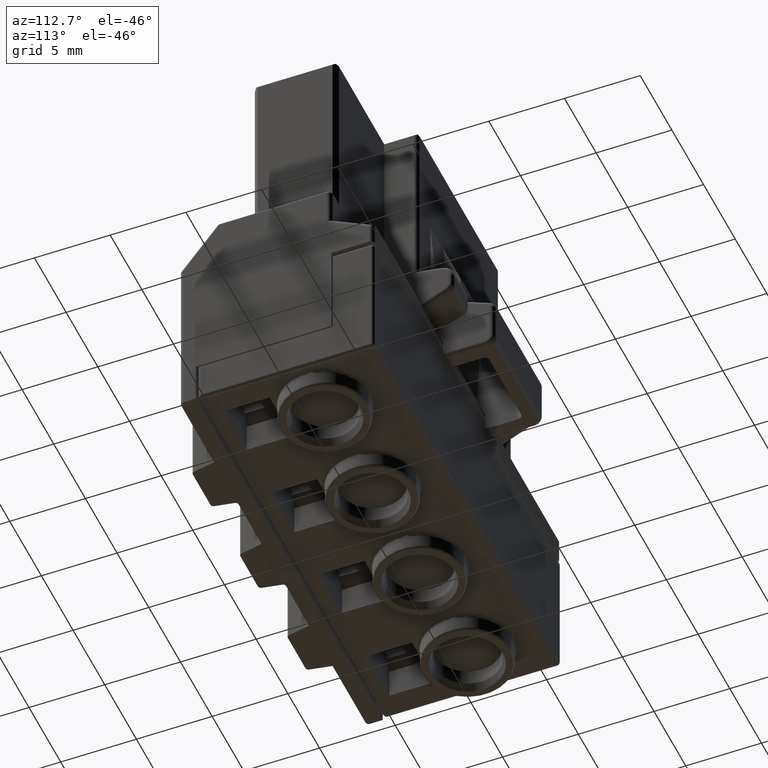
[diagram: clean part render]
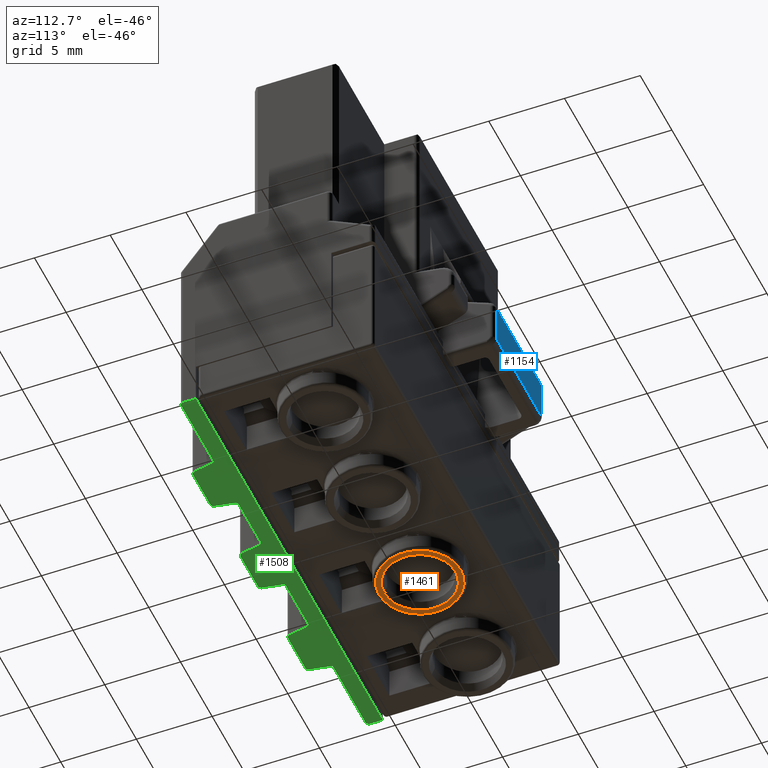
[diagram: same view with three faces highlighted in distinct colors, each labeled with its STEP entity id]
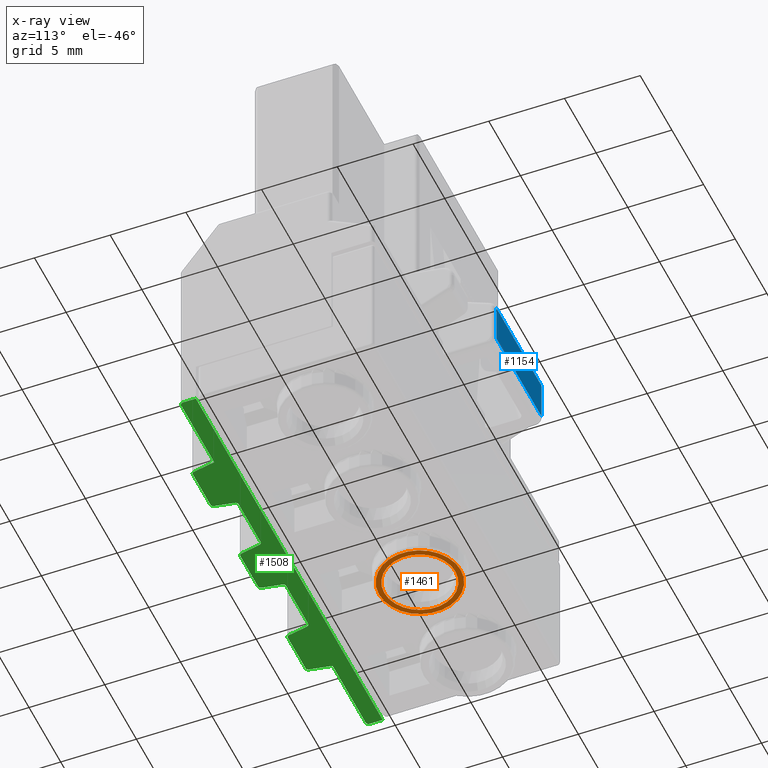
[diagram: x-ray of the same camera — body ghosted, the three highlighted faces saturated]
A machine part, auxiliary view with three faces highlighted in distinct colors.
The next image is the same camera in x-ray (body ghosted, the three faces saturated) — at least one of them is partly hidden behind the body in this view.
Their STEP definitions:

[orange] entity #1461 — the highlighted planar face has unit normal (0, 0, 1).
#1461=ADVANCED_FACE('',(#2240,#2241),#1997,.F.);
#1997=PLANE('',#13633);
#2240=FACE_BOUND('',#2704,.T.);
#2241=FACE_BOUND('',#2705,.T.);
#2704=EDGE_LOOP('',(#8402,#8403));
#2705=EDGE_LOOP('',(#8404,#8405));
#8402=ORIENTED_EDGE('',*,*,#12152,.F.);
#8403=ORIENTED_EDGE('',*,*,#12153,.F.);
#8404=ORIENTED_EDGE('',*,*,#12151,.T.);
#8405=ORIENTED_EDGE('',*,*,#12154,.T.);
#10517=VERTEX_POINT('',#20457);
#10518=VERTEX_POINT('',#20459);
#10519=VERTEX_POINT('',#20463);
#10520=VERTEX_POINT('',#20464);
#12151=EDGE_CURVE('',#10517,#10518,#12900,.T.);
#12152=EDGE_CURVE('',#10519,#10520,#12901,.T.);
#12153=EDGE_CURVE('',#10520,#10519,#12902,.T.);
#12154=EDGE_CURVE('',#10518,#10517,#12903,.T.);
#12900=CIRCLE('',#13628,2.35);
#12901=CIRCLE('',#13630,2.7);
#12902=CIRCLE('',#13631,2.7);
#12903=CIRCLE('',#13632,2.35);
#13628=AXIS2_PLACEMENT_3D('',#20460,#16307,#16308);
#13630=AXIS2_PLACEMENT_3D('',#20462,#16311,#16312);
#13631=AXIS2_PLACEMENT_3D('',#20465,#16313,#16314);
#13632=AXIS2_PLACEMENT_3D('',#20466,#16315,#16316);
#13633=AXIS2_PLACEMENT_3D('',#20467,#16317,#16318);
#16307=DIRECTION('',(0.,0.,1.));
#16308=DIRECTION('',(0.,1.,0.));
#16311=DIRECTION('',(0.,0.,1.));
#16312=DIRECTION('',(0.,-1.,0.));
#16313=DIRECTION('',(0.,0.,1.));
#16314=DIRECTION('',(0.,1.,0.));
#16315=DIRECTION('',(0.,0.,1.));
#16316=DIRECTION('',(0.,-1.,0.));
#16317=DIRECTION('',(0.,0.,1.));
#16318=DIRECTION('',(0.,-1.,0.));
#20457=CARTESIAN_POINT('',(-15.,3.16,-28.250000000001));
#20459=CARTESIAN_POINT('',(-15.,-1.54,-28.250000000001));
#20460=CARTESIAN_POINT('',(-15.,0.81,-28.250000000001));
#20462=CARTESIAN_POINT('',(-15.,0.81,-28.250000000001));
#20463=CARTESIAN_POINT('',(-15.,-1.89,-28.250000000001));
#20464=CARTESIAN_POINT('',(-15.,3.51,-28.250000000001));
#20465=CARTESIAN_POINT('',(-15.,0.81,-28.250000000001));
#20466=CARTESIAN_POINT('',(-15.,0.81,-28.250000000001));
#20467=CARTESIAN_POINT('',(-15.,0.81,-28.250000000001));

[blue] entity #1154 — the highlighted planar face has unit normal (0, 1, 0).
#489=FACE_OUTER_BOUND('',#2379,.T.);
#1154=ADVANCED_FACE('',(#489),#1819,.T.);
#1819=PLANE('',#13123);
#2379=EDGE_LOOP('',(#6698,#6699,#6700,#6701));
#3397=LINE('',#18398,#4904);
#3398=LINE('',#18402,#4905);
#3399=LINE('',#18404,#4906);
#3400=LINE('',#18406,#4907);
#4904=VECTOR('',#14711,1.);
#4905=VECTOR('',#14716,1.);
#4906=VECTOR('',#14717,1.);
#4907=VECTOR('',#14718,1.);
#6698=ORIENTED_EDGE('',*,*,#11341,.T.);
#6699=ORIENTED_EDGE('',*,*,#11343,.T.);
#6700=ORIENTED_EDGE('',*,*,#11344,.T.);
#6701=ORIENTED_EDGE('',*,*,#11345,.T.);
#10031=VERTEX_POINT('',#18397);
#10032=VERTEX_POINT('',#18399);
#10033=VERTEX_POINT('',#18403);
#10034=VERTEX_POINT('',#18405);
#11341=EDGE_CURVE('',#10032,#10031,#3397,.T.);
#11343=EDGE_CURVE('',#10031,#10033,#3398,.T.);
#11344=EDGE_CURVE('',#10033,#10034,#3399,.T.);
#11345=EDGE_CURVE('',#10034,#10032,#3400,.T.);
#13123=AXIS2_PLACEMENT_3D('',#18407,#14719,#14720);
#14711=DIRECTION('',(-1.,-7.105427357591E-014,4.042087478494E-012));
#14716=DIRECTION('',(2.214248219761E-012,1.524781708219E-013,1.));
#14717=DIRECTION('',(1.,1.030787349059E-013,0.));
#14718=DIRECTION('',(-2.868246982843E-012,-2.373355876246E-013,-1.));
#14719=DIRECTION('',(0.,1.,0.));
#14720=DIRECTION('',(0.,0.,1.));
#18397=CARTESIAN_POINT('',(-14.80000000001,8.915,-17.10000000025));
#18398=CARTESIAN_POINT('',(-7.699999999996,8.915,-17.10000000028));
#18399=CARTESIAN_POINT('',(-7.699999999996,8.915,-17.10000000028));
#18402=CARTESIAN_POINT('',(-14.80000000001,8.915,-17.10000000025));
#18403=CARTESIAN_POINT('',(-14.80000000001,8.915000000001,-14.42052089256));
#18404=CARTESIAN_POINT('',(-14.8,8.915,-14.42052089278));
#18405=CARTESIAN_POINT('',(-7.699999999978,8.915000000004,-14.42052089256));
#18406=CARTESIAN_POINT('',(-7.699999999988,8.915000000001,-14.42052089278));
#18407=CARTESIAN_POINT('',(-9.85,8.915,-14.1));

[green] entity #1508 — the highlighted planar face has unit normal (0, 0, -1).
#834=FACE_OUTER_BOUND('',#2753,.T.);
#1508=ADVANCED_FACE('',(#834),#2007,.T.);
#2007=PLANE('',#13715);
#2753=EDGE_LOOP('',(#8601,#8602,#8603,#8604,#8605,#8606,#8607,#8608,#8609,
#8610,#8611,#8612,#8613,#8614,#8615,#8616,#8617,#8618,#8619,#8620,#8621,
#8622,#8623,#8624,#8625,#8626,#8627,#8628,#8629));
#3248=LINE('',#18048,#4755);
#3256=LINE('',#18065,#4763);
#3810=LINE('',#19952,#5317);
#3831=LINE('',#19998,#5338);
#3835=LINE('',#20008,#5342);
#3836=LINE('',#20010,#5343);
#3838=LINE('',#20016,#5345);
#3841=LINE('',#20024,#5348);
#3846=LINE('',#20038,#5353);
#3849=LINE('',#20048,#5356);
#3852=LINE('',#20058,#5359);
#3855=LINE('',#20066,#5362);
#3857=LINE('',#20070,#5364);
#3859=LINE('',#20074,#5366);
#3862=LINE('',#20082,#5369);
#3864=LINE('',#20086,#5371);
#3865=LINE('',#20090,#5372);
#4755=VECTOR('',#14426,1.);
#4763=VECTOR('',#14436,1.);
#5317=VECTOR('',#15786,1.);
#5338=VECTOR('',#15835,1.);
#5342=VECTOR('',#15845,1.);
#5343=VECTOR('',#15846,1.);
#5345=VECTOR('',#15854,1.);
#5348=VECTOR('',#15863,1.);
#5353=VECTOR('',#15878,1.);
#5356=VECTOR('',#15891,1.);
#5359=VECTOR('',#15904,1.);
#5362=VECTOR('',#15913,1.);
#5364=VECTOR('',#15917,1.);
#5366=VECTOR('',#15921,1.);
#5369=VECTOR('',#15930,1.);
#5371=VECTOR('',#15934,1.);
#5372=VECTOR('',#15941,1.);
#8601=ORIENTED_EDGE('',*,*,#11938,.F.);
#8602=ORIENTED_EDGE('',*,*,#11936,.F.);
#8603=ORIENTED_EDGE('',*,*,#11942,.T.);
#8604=ORIENTED_EDGE('',*,*,#11941,.T.);
#8605=ORIENTED_EDGE('',*,*,#11944,.T.);
#8606=ORIENTED_EDGE('',*,*,#11982,.T.);
#8607=ORIENTED_EDGE('',*,*,#11953,.T.);
#8608=ORIENTED_EDGE('',*,*,#11956,.T.);
#8609=ORIENTED_EDGE('',*,*,#11957,.T.);
#8610=ORIENTED_EDGE('',*,*,#11188,.T.);
#8611=ORIENTED_EDGE('',*,*,#11951,.T.);
#8612=ORIENTED_EDGE('',*,*,#11949,.T.);
#8613=ORIENTED_EDGE('',*,*,#11947,.T.);
#8614=ORIENTED_EDGE('',*,*,#11970,.T.);
#8615=ORIENTED_EDGE('',*,*,#11968,.T.);
#8616=ORIENTED_EDGE('',*,*,#11966,.T.);
#8617=ORIENTED_EDGE('',*,*,#11964,.T.);
#8618=ORIENTED_EDGE('',*,*,#11180,.T.);
#8619=ORIENTED_EDGE('',*,*,#11963,.T.);
#8620=ORIENTED_EDGE('',*,*,#11961,.T.);
#8621=ORIENTED_EDGE('',*,*,#11959,.T.);
#8622=ORIENTED_EDGE('',*,*,#11972,.T.);
#8623=ORIENTED_EDGE('',*,*,#11981,.T.);
#8624=ORIENTED_EDGE('',*,*,#11978,.T.);
#8625=ORIENTED_EDGE('',*,*,#11974,.T.);
#8626=ORIENTED_EDGE('',*,*,#11977,.F.);
#8627=ORIENTED_EDGE('',*,*,#11980,.F.);
#8628=ORIENTED_EDGE('',*,*,#11913,.T.);
#8629=ORIENTED_EDGE('',*,*,#11945,.T.);
#9917=VERTEX_POINT('',#18046);
#9919=VERTEX_POINT('',#18049);
#9925=VERTEX_POINT('',#18063);
#9927=VERTEX_POINT('',#18066);
#10395=VERTEX_POINT('',#19951);
#10396=VERTEX_POINT('',#19953);
#10406=VERTEX_POINT('',#19997);
#10407=VERTEX_POINT('',#19999);
#10408=VERTEX_POINT('',#20003);
#10409=VERTEX_POINT('',#20007);
#10410=VERTEX_POINT('',#20009);
#10411=VERTEX_POINT('',#20013);
#10412=VERTEX_POINT('',#20019);
#10413=VERTEX_POINT('',#20021);
#10414=VERTEX_POINT('',#20025);
#10415=VERTEX_POINT('',#20031);
#10416=VERTEX_POINT('',#20033);
#10417=VERTEX_POINT('',#20037);
#10418=VERTEX_POINT('',#20043);
#10419=VERTEX_POINT('',#20045);
#10420=VERTEX_POINT('',#20049);
#10421=VERTEX_POINT('',#20055);
#10422=VERTEX_POINT('',#20059);
#10423=VERTEX_POINT('',#20063);
#10424=VERTEX_POINT('',#20069);
#10425=VERTEX_POINT('',#20073);
#10426=VERTEX_POINT('',#20075);
#10427=VERTEX_POINT('',#20079);
#10428=VERTEX_POINT('',#20083);
#11180=EDGE_CURVE('',#9919,#9917,#3248,.T.);
#11188=EDGE_CURVE('',#9927,#9925,#3256,.T.);
#11913=EDGE_CURVE('',#10396,#10395,#3810,.T.);
#11936=EDGE_CURVE('',#10406,#10407,#3831,.T.);
#11938=EDGE_CURVE('',#10407,#10408,#12839,.T.);
#11941=EDGE_CURVE('',#10410,#10409,#3835,.T.);
#11942=EDGE_CURVE('',#10406,#10410,#3836,.T.);
#11944=EDGE_CURVE('',#10409,#10411,#12840,.T.);
#11945=EDGE_CURVE('',#10395,#10408,#3838,.T.);
#11947=EDGE_CURVE('',#10413,#10412,#12841,.T.);
#11949=EDGE_CURVE('',#10414,#10413,#3841,.T.);
#11951=EDGE_CURVE('',#9925,#10414,#12842,.T.);
#11953=EDGE_CURVE('',#10416,#10415,#12843,.T.);
#11956=EDGE_CURVE('',#10415,#10417,#3846,.T.);
#11957=EDGE_CURVE('',#10417,#9927,#12844,.T.);
#11959=EDGE_CURVE('',#10419,#10418,#12845,.T.);
#11961=EDGE_CURVE('',#10420,#10419,#3849,.T.);
#11963=EDGE_CURVE('',#9917,#10420,#12846,.T.);
#11964=EDGE_CURVE('',#10421,#9919,#12847,.T.);
#11966=EDGE_CURVE('',#10422,#10421,#3852,.T.);
#11968=EDGE_CURVE('',#10423,#10422,#12848,.T.);
#11970=EDGE_CURVE('',#10412,#10423,#3855,.T.);
#11972=EDGE_CURVE('',#10418,#10424,#3857,.T.);
#11974=EDGE_CURVE('',#10426,#10425,#3859,.T.);
#11977=EDGE_CURVE('',#10427,#10425,#12849,.T.);
#11978=EDGE_CURVE('',#10428,#10426,#3862,.T.);
#11980=EDGE_CURVE('',#10396,#10427,#3864,.T.);
#11981=EDGE_CURVE('',#10424,#10428,#12850,.T.);
#11982=EDGE_CURVE('',#10411,#10416,#3865,.T.);
#12839=CIRCLE('',#13467,0.2);
#12840=CIRCLE('',#13470,0.2);
#12841=CIRCLE('',#13473,0.2);
#12842=CIRCLE('',#13476,0.2);
#12843=CIRCLE('',#13478,0.2);
#12844=CIRCLE('',#13481,0.2);
#12845=CIRCLE('',#13483,0.2);
#12846=CIRCLE('',#13486,0.2);
#12847=CIRCLE('',#13488,0.2);
#12848=CIRCLE('',#13491,0.2);
#12849=CIRCLE('',#13496,0.2);
#12850=CIRCLE('',#13500,0.2);
#13467=AXIS2_PLACEMENT_3D('',#20002,#15839,#15840);
#13470=AXIS2_PLACEMENT_3D('',#20014,#15850,#15851);
#13473=AXIS2_PLACEMENT_3D('',#20020,#15858,#15859);
#13476=AXIS2_PLACEMENT_3D('',#20028,#15867,#15868);
#13478=AXIS2_PLACEMENT_3D('',#20032,#15872,#15873);
#13481=AXIS2_PLACEMENT_3D('',#20040,#15881,#15882);
#13483=AXIS2_PLACEMENT_3D('',#20044,#15886,#15887);
#13486=AXIS2_PLACEMENT_3D('',#20052,#15895,#15896);
#13488=AXIS2_PLACEMENT_3D('',#20054,#15899,#15900);
#13491=AXIS2_PLACEMENT_3D('',#20062,#15908,#15909);
#13496=AXIS2_PLACEMENT_3D('',#20080,#15926,#15927);
#13500=AXIS2_PLACEMENT_3D('',#20088,#15937,#15938);
#13715=AXIS2_PLACEMENT_3D('',#20611,#16491,#16492);
#14426=DIRECTION('',(-1.,0.,0.));
#14436=DIRECTION('',(-1.,0.,0.));
#15786=DIRECTION('',(1.,0.,0.));
#15835=DIRECTION('',(1.,0.,0.));
#15839=DIRECTION('',(0.,0.,1.));
#15840=DIRECTION('',(-1.,0.,0.));
#15845=DIRECTION('',(-0.1842885351191,-0.9828721869214,0.));
#15846=DIRECTION('',(-0.184288535050107,-0.982872186934337,0.));
#15850=DIRECTION('',(0.,0.,-1.));
#15851=DIRECTION('',(0.982872186934337,-0.184288535050106,0.));
#15854=DIRECTION('',(0.,-1.,0.));
#15858=DIRECTION('',(0.,0.,-1.));
#15859=DIRECTION('',(0.982872186934339,-0.184288535050106,0.));
#15863=DIRECTION('',(-0.184288535050107,-0.982872186934337,0.));
#15867=DIRECTION('',(0.,0.,1.));
#15868=DIRECTION('',(0.,0.999999999999998,0.));
#15872=DIRECTION('',(0.,0.,-1.));
#15873=DIRECTION('',(0.,-1.,0.));
#15878=DIRECTION('',(-0.184288535050203,0.982872186934318,0.));
#15881=DIRECTION('',(0.,0.,1.));
#15882=DIRECTION('',(0.982872186934317,0.184288535050202,0.));
#15886=DIRECTION('',(0.,0.,-1.));
#15887=DIRECTION('',(0.982872186934339,-0.184288535050106,0.));
#15891=DIRECTION('',(-0.184288535050107,-0.982872186934337,0.));
#15895=DIRECTION('',(0.,0.,1.));
#15896=DIRECTION('',(0.,0.999999999999998,0.));
#15899=DIRECTION('',(0.,0.,1.));
#15900=DIRECTION('',(0.982872186934321,0.184288535050202,0.));
#15904=DIRECTION('',(-0.184288535050203,0.982872186934318,0.));
#15908=DIRECTION('',(0.,0.,-1.));
#15909=DIRECTION('',(0.,-1.,0.));
#15913=DIRECTION('',(-1.,0.,0.));
#15917=DIRECTION('',(-1.,0.,0.));
#15921=DIRECTION('',(-1.,0.,0.));
#15926=DIRECTION('',(0.,0.,1.));
#15927=DIRECTION('',(-0.999999999999994,0.,0.));
#15930=DIRECTION('',(-0.184288535121896,0.982872186920876,0.));
#15934=DIRECTION('',(0.,-1.,0.));
#15937=DIRECTION('',(0.,0.,-1.));
#15938=DIRECTION('',(0.,-1.,0.));
#15941=DIRECTION('',(-1.,0.,0.));
#16491=DIRECTION('',(0.,0.,-1.));
#16492=DIRECTION('',(0.,-1.,0.));
#18046=CARTESIAN_POINT('',(-16.73401474255,-7.295000000001,-27.));
#18048=CARTESIAN_POINT('',(-13.26598525745,-7.295000000001,-27.));
#18049=CARTESIAN_POINT('',(-13.26598525745,-7.295000000001,-27.));
#18063=CARTESIAN_POINT('',(-9.234014742549,-7.295000000001,-27.));
#18065=CARTESIAN_POINT('',(-5.765985257448,-7.295000000001,-27.));
#18066=CARTESIAN_POINT('',(-5.765985257448,-7.295000000001,-27.));
#19951=CARTESIAN_POINT('',(3.5,-6.245,-27.));
#19952=CARTESIAN_POINT('',(-25.7,-6.245,-27.));
#19953=CARTESIAN_POINT('',(-26.,-6.245,-27.));
#19997=CARTESIAN_POINT('',(-1.90000000000019,-7.295000000001,-27.));
#19998=CARTESIAN_POINT('',(3.5,-7.295000000001,-27.));
#19999=CARTESIAN_POINT('',(3.3,-7.295000000001,-27.));
#20002=CARTESIAN_POINT('',(3.3,-7.095000000001,-27.));
#20003=CARTESIAN_POINT('',(3.5,-7.095000000001,-27.));
#20007=CARTESIAN_POINT('',(-2.169410820064,-8.731857707011,-27.));
#20008=CARTESIAN_POINT('',(-1.920541085126,-7.404552454522,-27.));
#20009=CARTESIAN_POINT('',(-1.920541085126,-7.404552454522,-27.));
#20010=CARTESIAN_POINT('',(-1.86150943396254,-7.08971698113347,-27.));
#20013=CARTESIAN_POINT('',(-2.365985257451,-8.895000000001,-27.));
#20014=CARTESIAN_POINT('',(-2.365985257451,-8.695000000001,-27.));
#20016=CARTESIAN_POINT('',(3.5,-6.62,-27.));
#20019=CARTESIAN_POINT('',(-9.865985257451,-8.895000000001,-27.));
#20020=CARTESIAN_POINT('',(-9.865985257451,-8.695000000001,-27.));
#20021=CARTESIAN_POINT('',(-9.669410820064,-8.731857707011,-27.));
#20024=CARTESIAN_POINT('',(-9.430589179936,-7.458142292991,-27.));
#20025=CARTESIAN_POINT('',(-9.430589179936,-7.458142292991,-27.));
#20028=CARTESIAN_POINT('',(-9.234014742549,-7.495000000001,-27.));
#20031=CARTESIAN_POINT('',(-5.330589179933,-8.731857707011,-27.));
#20032=CARTESIAN_POINT('',(-5.134014742546,-8.695000000001,-27.));
#20033=CARTESIAN_POINT('',(-5.134014742546,-8.895000000001,-27.));
#20037=CARTESIAN_POINT('',(-5.569410820062,-7.458142292991,-27.));
#20038=CARTESIAN_POINT('',(-5.330589179933,-8.731857707011,-27.));
#20040=CARTESIAN_POINT('',(-5.765985257448,-7.495000000001,-27.));
#20043=CARTESIAN_POINT('',(-17.36598525745,-8.895000000001,-27.));
#20044=CARTESIAN_POINT('',(-17.36598525745,-8.695000000001,-27.));
#20045=CARTESIAN_POINT('',(-17.16941082006,-8.731857707011,-27.));
#20048=CARTESIAN_POINT('',(-16.93058917994,-7.458142292991,-27.));
#20049=CARTESIAN_POINT('',(-16.93058917994,-7.458142292991,-27.));
#20052=CARTESIAN_POINT('',(-16.73401474255,-7.495000000001,-27.));
#20054=CARTESIAN_POINT('',(-13.26598525745,-7.495000000001,-27.));
#20055=CARTESIAN_POINT('',(-13.06941082006,-7.458142292991,-27.));
#20058=CARTESIAN_POINT('',(-12.83058917993,-8.731857707011,-27.));
#20059=CARTESIAN_POINT('',(-12.83058917993,-8.731857707011,-27.));
#20062=CARTESIAN_POINT('',(-12.63401474255,-8.695000000001,-27.));
#20063=CARTESIAN_POINT('',(-12.63401474255,-8.895000000001,-27.));
#20066=CARTESIAN_POINT('',(-12.15,-8.895000000001,-27.));
#20069=CARTESIAN_POINT('',(-20.13401474255,-8.895000000001,-27.));
#20070=CARTESIAN_POINT('',(-17.36598525745,-8.895000000001,-27.));
#20073=CARTESIAN_POINT('',(-25.8,-7.295000000001,-27.));
#20074=CARTESIAN_POINT('',(-19.75,-7.295000000001,-27.));
#20075=CARTESIAN_POINT('',(-20.6000000001029,-7.295000000001,-27.));
#20079=CARTESIAN_POINT('',(-26.,-7.095000000001,-27.));
#20080=CARTESIAN_POINT('',(-25.8,-7.095000000001,-27.));
#20082=CARTESIAN_POINT('',(-20.33058917993,-8.731857707011,-27.));
#20083=CARTESIAN_POINT('',(-20.33058917993,-8.731857707011,-27.));
#20086=CARTESIAN_POINT('',(-26.,-8.095000000001,-27.));
#20088=CARTESIAN_POINT('',(-20.13401474255,-8.695000000001,-27.));
#20090=CARTESIAN_POINT('',(-2.365985257451,-8.895000000001,-27.));
#20611=CARTESIAN_POINT('',(3.5,-8.095000000001,-27.));